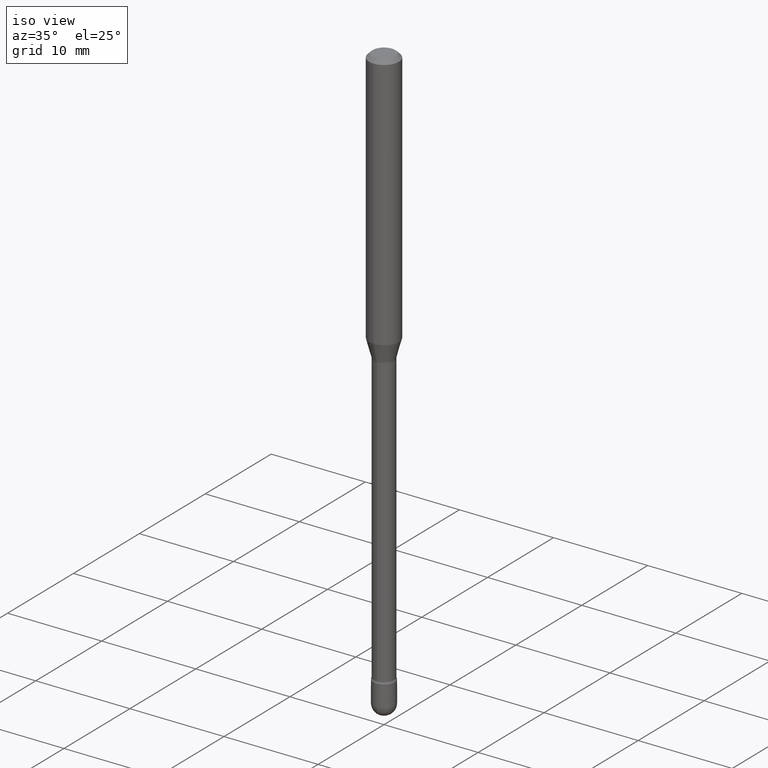
[diagram: clean part render]
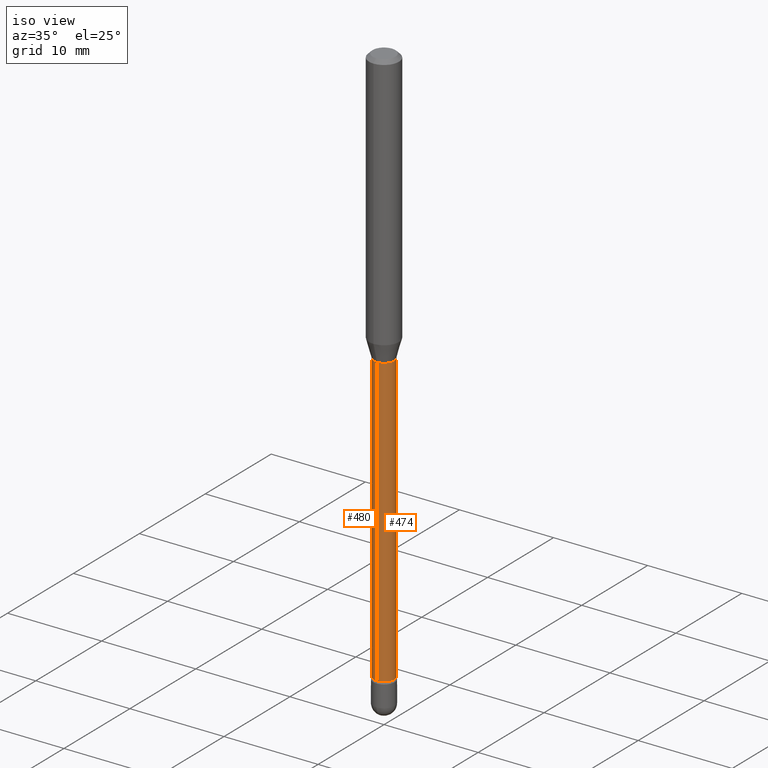
[diagram: same view with one multi-face feature highlighted, each face labeled with its STEP entity id]
A machine part, iso view. The highlighted faces form ONE feature: a constant-radius fillet chain: 2 tangent blend faces with common blend radius 1.0744 mm. The faces share edges in the B-rep.
Their STEP definitions:
[1] entity #474 (Cylinder):
#19 = CARTESIAN_POINT ( 'NONE',  ( 3.101519041593418202E-16, 0.04229999999999190657, -2.356414547187247965 ) ) ;
#26 = CARTESIAN_POINT ( 'NONE',  ( -2.953793212661009010E-16, -0.04230000000000402188, -1.151974787463810657 ) ) ;
#53 = DIRECTION ( 'NONE',  ( -2.445535940486029483E-29, 3.491385198703219756E-15, 1.000000000000000000 ) ) ;
#75 = VERTEX_POINT ( 'NONE', #19 ) ;
#88 = CIRCLE ( 'NONE', #235, 0.04230000000000013610 ) ;
#92 = EDGE_CURVE ( 'NONE', #75, #194, #191, .T. ) ;
#105 = DIRECTION ( 'NONE',  ( -2.445535940486029483E-29, 3.491385198703219756E-15, 1.000000000000000000 ) ) ;
#113 = CARTESIAN_POINT ( 'NONE',  ( -1.169113584055446105E-44, 1.669184350826100908E-30, 4.780733988912460139E-16 ) ) ;
#114 = DIRECTION ( 'NONE',  ( -6.982962677686266711E-15, -1.000000000000000000, 6.458269488567977659E-15 ) ) ;
#119 = CARTESIAN_POINT ( 'NONE',  ( 5.762696465830526274E-29, -8.227150872058505933E-15, -2.356414547187247521 ) ) ;
#136 = CIRCLE ( 'NONE', #320, 0.04229999999999999732 ) ;
#150 = CARTESIAN_POINT ( 'NONE',  ( 2.817195745276504694E-29, -4.021987722230436486E-15, -1.151974787463810879 ) ) ;
#156 = CARTESIAN_POINT ( 'NONE',  ( 3.005595772265804395E-16, 0.04229999999999597970, -1.151974787463810879 ) ) ;
#182 = EDGE_CURVE ( 'NONE', #447, #75, #88, .T. ) ;
#191 = LINE ( 'NONE', #411, #322 ) ;
#194 = VERTEX_POINT ( 'NONE', #156 ) ;
#198 = CARTESIAN_POINT ( 'NONE',  ( -2.953793212661295465E-16, -0.04230000000000006671, 6.257589927963924165E-16 ) ) ;
#235 = AXIS2_PLACEMENT_3D ( 'NONE', #119, #380, #114 ) ;
#246 = DIRECTION ( 'NONE',  ( -6.982962677686266711E-15, -1.000000000000000000, 3.491385198703217784E-15 ) ) ;
#250 = EDGE_CURVE ( 'NONE', #478, #194, #136, .T. ) ;
#258 = DIRECTION ( 'NONE',  ( -2.445535940486029483E-29, 3.491385198703219756E-15, 1.000000000000000000 ) ) ;
#259 = VECTOR ( 'NONE', #503, 39.37007874015748143 ) ;
#291 = DIRECTION ( 'NONE',  ( -6.982962677686266711E-15, -1.000000000000000000, 3.229134744283999085E-15 ) ) ;
#305 = ORIENTED_EDGE ( 'NONE', *, *, #557, .F. ) ;
#320 = AXIS2_PLACEMENT_3D ( 'NONE', #150, #105, #291 ) ;
#322 = VECTOR ( 'NONE', #53, 39.37007874015748143 ) ;
#380 = DIRECTION ( 'NONE',  ( -2.445535940486029483E-29, 3.491385198703219756E-15, 1.000000000000000000 ) ) ;
#382 = LINE ( 'NONE', #198, #259 ) ;
#411 = CARTESIAN_POINT ( 'NONE',  ( 3.005595772265228033E-16, 0.04230000000000006671, 3.303878049860996607E-16 ) ) ;
#420 = CYLINDRICAL_SURFACE ( 'NONE', #498, 0.04230000000000006671 ) ;
#429 = ORIENTED_EDGE ( 'NONE', *, *, #92, .T. ) ;
#434 = ORIENTED_EDGE ( 'NONE', *, *, #250, .F. ) ;
#441 = ORIENTED_EDGE ( 'NONE', *, *, #182, .T. ) ;
#447 = VERTEX_POINT ( 'NONE', #473 ) ;
#473 = CARTESIAN_POINT ( 'NONE',  ( -2.953793212660724034E-16, -0.04230000000000836563, -2.356414547187247077 ) ) ;
#474 = ADVANCED_FACE ( 'NONE', ( #545 ), #420, .T. ) ;
#478 = VERTEX_POINT ( 'NONE', #26 ) ;
#498 = AXIS2_PLACEMENT_3D ( 'NONE', #113, #258, #246 ) ;
#503 = DIRECTION ( 'NONE',  ( -2.445535940486029483E-29, 3.491385198703219756E-15, 1.000000000000000000 ) ) ;
#545 = FACE_OUTER_BOUND ( 'NONE', #564, .T. ) ;
#557 = EDGE_CURVE ( 'NONE', #447, #478, #382, .T. ) ;
#564 = EDGE_LOOP ( 'NONE', ( #441, #429, #434, #305 ) ) ;
[2] entity #480 (Cylinder):
#11 = DIRECTION ( 'NONE',  ( -6.982962677686266711E-15, -1.000000000000000000, 3.229134744283999085E-15 ) ) ;
#12 = AXIS2_PLACEMENT_3D ( 'NONE', #405, #231, #181 ) ;
#19 = CARTESIAN_POINT ( 'NONE',  ( 3.101519041593418202E-16, 0.04229999999999190657, -2.356414547187247965 ) ) ;
#26 = CARTESIAN_POINT ( 'NONE',  ( -2.953793212661009010E-16, -0.04230000000000402188, -1.151974787463810657 ) ) ;
#39 = CIRCLE ( 'NONE', #12, 0.04230000000000013610 ) ;
#42 = EDGE_LOOP ( 'NONE', ( #318, #555, #562, #373 ) ) ;
#45 = EDGE_CURVE ( 'NONE', #194, #478, #400, .T. ) ;
#53 = DIRECTION ( 'NONE',  ( -2.445535940486029483E-29, 3.491385198703219756E-15, 1.000000000000000000 ) ) ;
#71 = AXIS2_PLACEMENT_3D ( 'NONE', #200, #461, #158 ) ;
#75 = VERTEX_POINT ( 'NONE', #19 ) ;
#92 = EDGE_CURVE ( 'NONE', #75, #194, #191, .T. ) ;
#156 = CARTESIAN_POINT ( 'NONE',  ( 3.005595772265804395E-16, 0.04229999999999597970, -1.151974787463810879 ) ) ;
#158 = DIRECTION ( 'NONE',  ( -6.982962677686266711E-15, -1.000000000000000000, 3.491385198703217784E-15 ) ) ;
#181 = DIRECTION ( 'NONE',  ( -6.982962677686266711E-15, -1.000000000000000000, 6.458269488567977659E-15 ) ) ;
#191 = LINE ( 'NONE', #411, #322 ) ;
#194 = VERTEX_POINT ( 'NONE', #156 ) ;
#198 = CARTESIAN_POINT ( 'NONE',  ( -2.953793212661295465E-16, -0.04230000000000006671, 6.257589927963924165E-16 ) ) ;
#200 = CARTESIAN_POINT ( 'NONE',  ( -1.169113584055446105E-44, 1.669184350826100908E-30, 4.780733988912460139E-16 ) ) ;
#231 = DIRECTION ( 'NONE',  ( -2.445535940486029483E-29, 3.491385198703219756E-15, 1.000000000000000000 ) ) ;
#259 = VECTOR ( 'NONE', #503, 39.37007874015748143 ) ;
#318 = ORIENTED_EDGE ( 'NONE', *, *, #92, .F. ) ;
#321 = CARTESIAN_POINT ( 'NONE',  ( 2.817195745276504694E-29, -4.021987722230436486E-15, -1.151974787463810879 ) ) ;
#322 = VECTOR ( 'NONE', #53, 39.37007874015748143 ) ;
#329 = CYLINDRICAL_SURFACE ( 'NONE', #71, 0.04230000000000006671 ) ;
#371 = FACE_OUTER_BOUND ( 'NONE', #42, .T. ) ;
#373 = ORIENTED_EDGE ( 'NONE', *, *, #45, .F. ) ;
#382 = LINE ( 'NONE', #198, #259 ) ;
#388 = EDGE_CURVE ( 'NONE', #75, #447, #39, .T. ) ;
#400 = CIRCLE ( 'NONE', #561, 0.04229999999999999732 ) ;
#405 = CARTESIAN_POINT ( 'NONE',  ( 5.762696465830526274E-29, -8.227150872058505933E-15, -2.356414547187247521 ) ) ;
#411 = CARTESIAN_POINT ( 'NONE',  ( 3.005595772265228033E-16, 0.04230000000000006671, 3.303878049860996607E-16 ) ) ;
#447 = VERTEX_POINT ( 'NONE', #473 ) ;
#449 = DIRECTION ( 'NONE',  ( -2.445535940486029483E-29, 3.491385198703219756E-15, 1.000000000000000000 ) ) ;
#461 = DIRECTION ( 'NONE',  ( -2.445535940486029483E-29, 3.491385198703219756E-15, 1.000000000000000000 ) ) ;
#473 = CARTESIAN_POINT ( 'NONE',  ( -2.953793212660724034E-16, -0.04230000000000836563, -2.356414547187247077 ) ) ;
#478 = VERTEX_POINT ( 'NONE', #26 ) ;
#480 = ADVANCED_FACE ( 'NONE', ( #371 ), #329, .T. ) ;
#503 = DIRECTION ( 'NONE',  ( -2.445535940486029483E-29, 3.491385198703219756E-15, 1.000000000000000000 ) ) ;
#555 = ORIENTED_EDGE ( 'NONE', *, *, #388, .T. ) ;
#557 = EDGE_CURVE ( 'NONE', #447, #478, #382, .T. ) ;
#561 = AXIS2_PLACEMENT_3D ( 'NONE', #321, #449, #11 ) ;
#562 = ORIENTED_EDGE ( 'NONE', *, *, #557, .T. ) ;